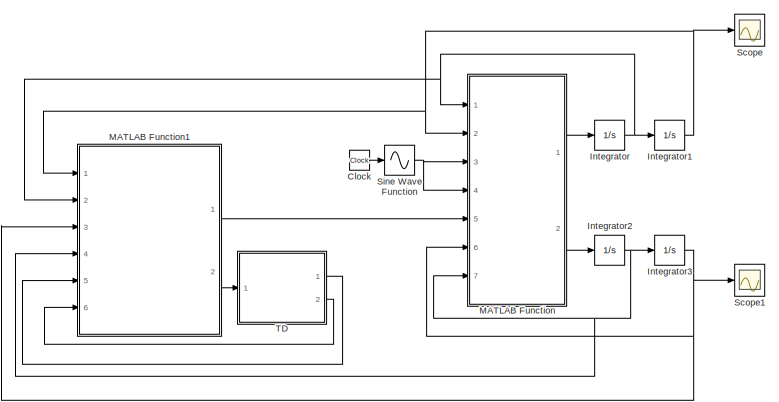
[diagram: root canvas - part 1/2, top center region]
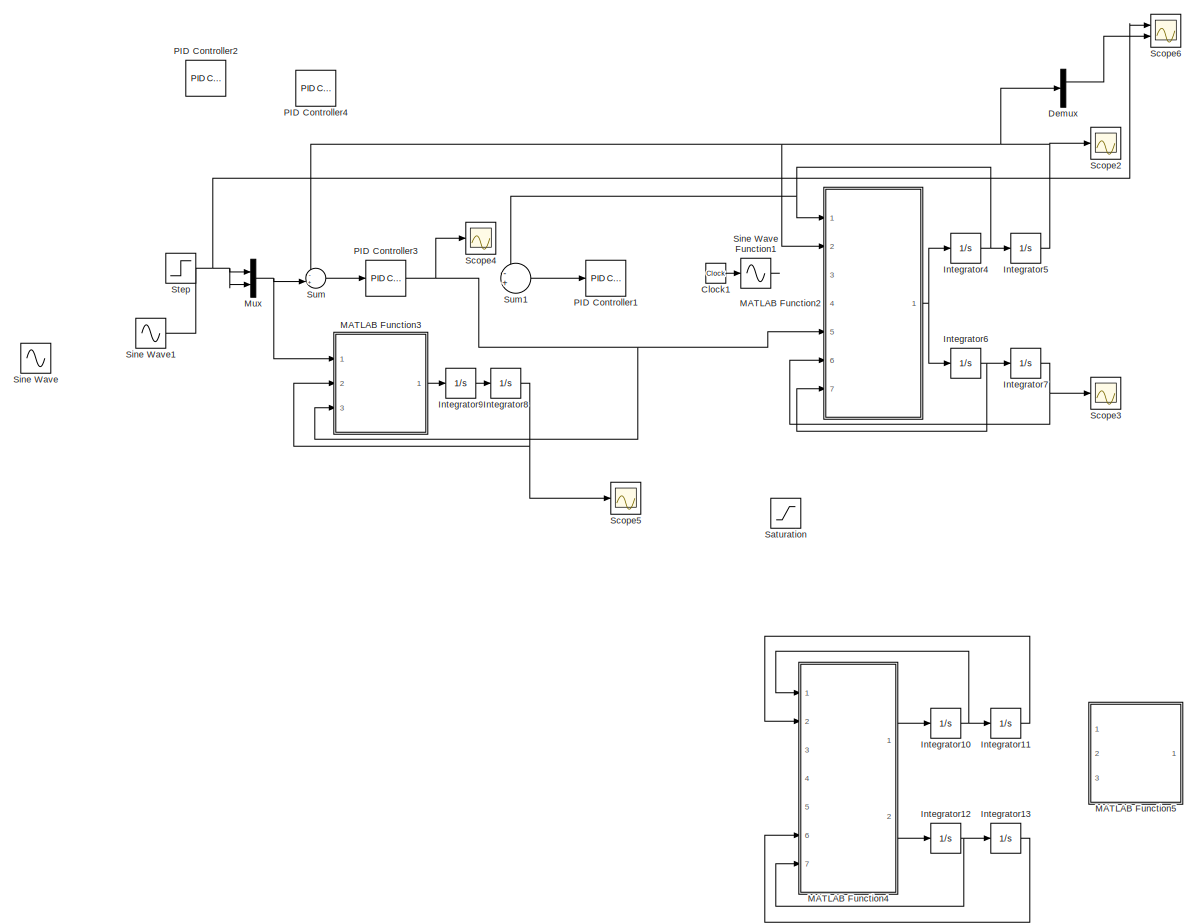
[diagram: root canvas - part 2/2, full width, middle band]
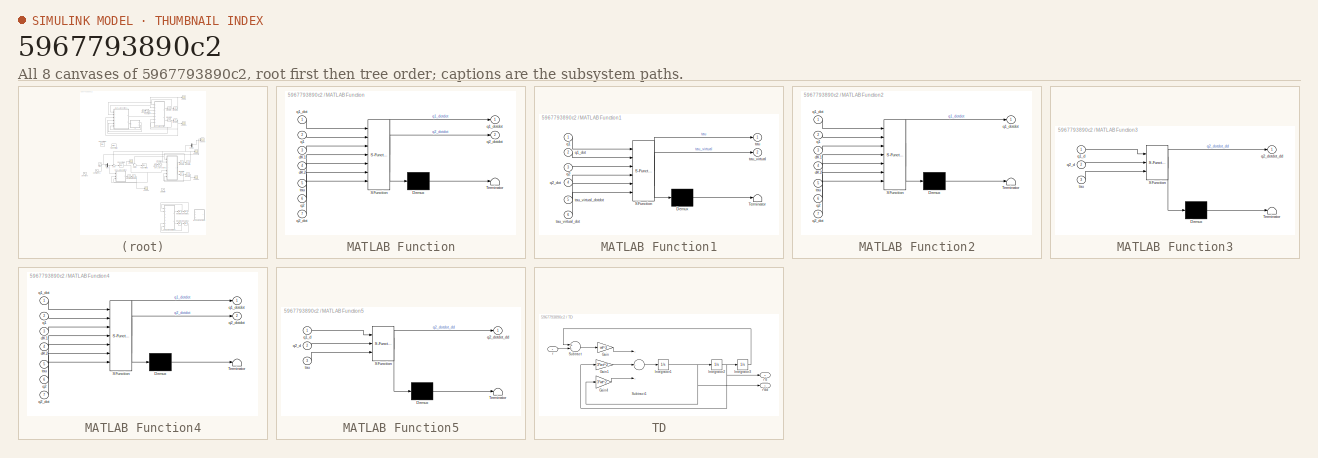
[diagram: thumbnail index - all 8 canvases of the model, root first then tree order]
MODEL slx_5967793890c2
KIND model
CONFIG AbsTol = auto
CONFIG EnableMultiTasking = off
CONFIG FixedStep = 0.001
CONFIG MaxStep = auto
CONFIG MinStep = auto
CONFIG RelTol = 1e-3
CONFIG SampleTimeConstraint = Unconstrained
CONFIG Solver = ode1
CONFIG SolverName = ode1
CONFIG StartTime = 0.0
CONFIG StopTime = 100
BLOCK [Clock] Clock
  Commented = on
BLOCK [Clock] Clock1
BLOCK [Demux] Demux
  DisplayOption = bar
  Outputs = 2
  Ports = [1, 2]
BLOCK [Integrator] Integrator
  Commented = on
  Ports = [1, 1]
BLOCK [Integrator] Integrator1
  Commented = on
  Ports = [1, 1]
BLOCK [Integrator] Integrator10
  Ports = [1, 1]
BLOCK [Integrator] Integrator11
  Ports = [1, 1]
BLOCK [Integrator] Integrator12
  Ports = [1, 1]
BLOCK [Integrator] Integrator13
  Ports = [1, 1]
BLOCK [Integrator] Integrator2
  Commented = on
  Ports = [1, 1]
BLOCK [Integrator] Integrator3
  Commented = on
  Ports = [1, 1]
BLOCK [Integrator] Integrator4
  Ports = [1, 1]
BLOCK [Integrator] Integrator5
  Ports = [1, 1]
BLOCK [Integrator] Integrator6
  Ports = [1, 1]
BLOCK [Integrator] Integrator7
  Ports = [1, 1]
BLOCK [Integrator] Integrator8
  Ports = [1, 1]
BLOCK [Integrator] Integrator9
  Ports = [1, 1]
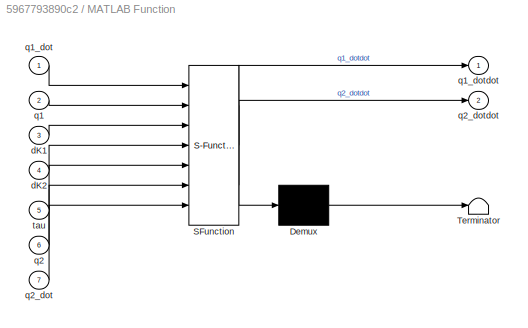
BLOCK [SubSystem] MATLAB Function
  Commented = on
  ErrorFcn = Stateflow.Translate.translate
  PermitHierarchicalResolution = ExplicitOnly
  Ports = [7, 2]
  RequestExecContextInheritance = off
  SFBlockType = MATLAB Function
  TreatAsAtomicUnit = on
BLOCK [Demux] MATLAB Function/ Demux 
  Outputs = 1
  Ports = [1, 1]
BLOCK [S-Function] MATLAB Function/ SFunction 
  EnableBusSupport = on
  FunctionName = sf_sfun
  PortCounts = [7 3]
  Ports = [7, 3]
  SFcnIsStateOwnerBlock = off
  SFunctionDeploymentMode = off
  Tag = Stateflow S-Function Copy_of_motor_new 2
BLOCK [Terminator] MATLAB Function/ Terminator 
BLOCK [Inport] MATLAB Function/dK1
  IconDisplay = Port number
  Port = 3
BLOCK [Inport] MATLAB Function/dK2
  IconDisplay = Port number
  Port = 4
BLOCK [Inport] MATLAB Function/q1
  IconDisplay = Port number
  Port = 2
BLOCK [Inport] MATLAB Function/q1_dot
  IconDisplay = Port number
BLOCK [Outport] MATLAB Function/q1_dotdot
  IconDisplay = Port number
BLOCK [Inport] MATLAB Function/q2
  IconDisplay = Port number
  Port = 6
BLOCK [Inport] MATLAB Function/q2_dot
  IconDisplay = Port number
  Port = 7
BLOCK [Outport] MATLAB Function/q2_dotdot
  IconDisplay = Port number
  Port = 2
BLOCK [Inport] MATLAB Function/tau
  IconDisplay = Port number
  Port = 5
BLOCK [SubSystem] MATLAB Function1
  Commented = on
  ErrorFcn = Stateflow.Translate.translate
  PermitHierarchicalResolution = ExplicitOnly
  Ports = [6, 2]
  RequestExecContextInheritance = off
  SFBlockType = MATLAB Function
  TreatAsAtomicUnit = on
BLOCK [Demux] MATLAB Function1/ Demux 
  Outputs = 1
  Ports = [1, 1]
BLOCK [S-Function] MATLAB Function1/ SFunction 
  EnableBusSupport = on
  FunctionName = sf_sfun
  PortCounts = [6 3]
  Ports = [6, 3]
  SFcnIsStateOwnerBlock = off
  SFunctionDeploymentMode = off
  Tag = Stateflow S-Function Copy_of_motor_new 1
BLOCK [Terminator] MATLAB Function1/ Terminator 
BLOCK [Inport] MATLAB Function1/q1
  IconDisplay = Port number
BLOCK [Inport] MATLAB Function1/q1_dot
  IconDisplay = Port number
  Port = 2
BLOCK [Inport] MATLAB Function1/q2
  IconDisplay = Port number
  Port = 3
BLOCK [Inport] MATLAB Function1/q2_dot
  IconDisplay = Port number
  Port = 4
BLOCK [Outport] MATLAB Function1/tau
  IconDisplay = Port number
BLOCK [Outport] MATLAB Function1/tau_virtual
  IconDisplay = Port number
  Port = 2
BLOCK [Inport] MATLAB Function1/tau_virtual_dot
  IconDisplay = Port number
  Port = 6
BLOCK [Inport] MATLAB Function1/tau_virtual_dotdot
  IconDisplay = Port number
  Port = 5
BLOCK [SubSystem] MATLAB Function2
  ErrorFcn = Stateflow.Translate.translate
  PermitHierarchicalResolution = ExplicitOnly
  Ports = [7, 1]
  RequestExecContextInheritance = off
  SFBlockType = MATLAB Function
  TreatAsAtomicUnit = on
BLOCK [Demux] MATLAB Function2/ Demux 
  Outputs = 1
  Ports = [1, 1]
BLOCK [S-Function] MATLAB Function2/ SFunction 
  EnableBusSupport = on
  FunctionName = sf_sfun
  PortCounts = [7 2]
  Ports = [7, 2]
  SFcnIsStateOwnerBlock = off
  SFunctionDeploymentMode = off
  Tag = Stateflow S-Function Copy_of_motor_new 3
BLOCK [Terminator] MATLAB Function2/ Terminator 
BLOCK [Inport] MATLAB Function2/dK1
  IconDisplay = Port number
  Port = 3
BLOCK [Inport] MATLAB Function2/dK2
  IconDisplay = Port number
  Port = 4
BLOCK [Inport] MATLAB Function2/q1
  IconDisplay = Port number
  Port = 2
BLOCK [Inport] MATLAB Function2/q1_dot
  IconDisplay = Port number
BLOCK [Outport] MATLAB Function2/q1_dotdot
  IconDisplay = Port number
BLOCK [Inport] MATLAB Function2/q2
  IconDisplay = Port number
  Port = 6
BLOCK [Inport] MATLAB Function2/q2_dot
  IconDisplay = Port number
  Port = 7
BLOCK [Inport] MATLAB Function2/tau
  IconDisplay = Port number
  Port = 5
BLOCK [SubSystem] MATLAB Function3
  ErrorFcn = Stateflow.Translate.translate
  PermitHierarchicalResolution = ExplicitOnly
  Ports = [3, 1]
  RequestExecContextInheritance = off
  SFBlockType = MATLAB Function
  TreatAsAtomicUnit = on
BLOCK [Demux] MATLAB Function3/ Demux 
  Outputs = 1
  Ports = [1, 1]
BLOCK [S-Function] MATLAB Function3/ SFunction 
  EnableBusSupport = on
  FunctionName = sf_sfun
  PortCounts = [3 2]
  Ports = [3, 2]
  SFcnIsStateOwnerBlock = off
  SFunctionDeploymentMode = off
  Tag = Stateflow S-Function Copy_of_motor_new 4
BLOCK [Terminator] MATLAB Function3/ Terminator 
BLOCK [Inport] MATLAB Function3/q1_d
  IconDisplay = Port number
BLOCK [Inport] MATLAB Function3/q2_d
  IconDisplay = Port number
  Port = 2
BLOCK [Outport] MATLAB Function3/q2_dotdot_dd
  IconDisplay = Port number
BLOCK [Inport] MATLAB Function3/tau
  IconDisplay = Port number
  Port = 3
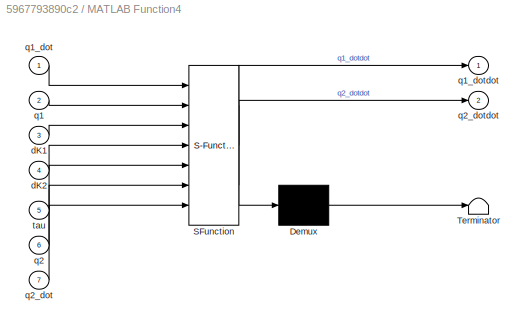
BLOCK [SubSystem] MATLAB Function4
  ErrorFcn = Stateflow.Translate.translate
  PermitHierarchicalResolution = ExplicitOnly
  Ports = [7, 2]
  RequestExecContextInheritance = off
  SFBlockType = MATLAB Function
  TreatAsAtomicUnit = on
BLOCK [Demux] MATLAB Function4/ Demux 
  Outputs = 1
  Ports = [1, 1]
BLOCK [S-Function] MATLAB Function4/ SFunction 
  EnableBusSupport = on
  FunctionName = sf_sfun
  PortCounts = [7 3]
  Ports = [7, 3]
  SFcnIsStateOwnerBlock = off
  SFunctionDeploymentMode = off
  Tag = Stateflow S-Function Copy_of_motor_new 5
BLOCK [Terminator] MATLAB Function4/ Terminator 
BLOCK [Inport] MATLAB Function4/dK1
  IconDisplay = Port number
  Port = 3
BLOCK [Inport] MATLAB Function4/dK2
  IconDisplay = Port number
  Port = 4
BLOCK [Inport] MATLAB Function4/q1
  IconDisplay = Port number
  Port = 2
BLOCK [Inport] MATLAB Function4/q1_dot
  IconDisplay = Port number
BLOCK [Outport] MATLAB Function4/q1_dotdot
  IconDisplay = Port number
BLOCK [Inport] MATLAB Function4/q2
  IconDisplay = Port number
  Port = 6
BLOCK [Inport] MATLAB Function4/q2_dot
  IconDisplay = Port number
  Port = 7
BLOCK [Outport] MATLAB Function4/q2_dotdot
  IconDisplay = Port number
  Port = 2
BLOCK [Inport] MATLAB Function4/tau
  IconDisplay = Port number
  Port = 5
BLOCK [SubSystem] MATLAB Function5
  ErrorFcn = Stateflow.Translate.translate
  PermitHierarchicalResolution = ExplicitOnly
  Ports = [3, 1]
  RequestExecContextInheritance = off
  SFBlockType = MATLAB Function
  TreatAsAtomicUnit = on
BLOCK [Demux] MATLAB Function5/ Demux 
  Outputs = 1
  Ports = [1, 1]
BLOCK [S-Function] MATLAB Function5/ SFunction 
  EnableBusSupport = on
  FunctionName = sf_sfun
  PortCounts = [3 2]
  Ports = [3, 2]
  SFcnIsStateOwnerBlock = off
  SFunctionDeploymentMode = off
  Tag = Stateflow S-Function Copy_of_motor_new 6
BLOCK [Terminator] MATLAB Function5/ Terminator 
BLOCK [Inport] MATLAB Function5/q1_d
  IconDisplay = Port number
BLOCK [Inport] MATLAB Function5/q2_d
  IconDisplay = Port number
  Port = 2
BLOCK [Outport] MATLAB Function5/q2_dotdot_dd
  IconDisplay = Port number
BLOCK [Inport] MATLAB Function5/tau
  IconDisplay = Port number
  Port = 3
BLOCK [Mux] Mux
  DisplayOption = bar
  Inputs = 2
  Ports = [2, 1]
BLOCK [Reference] PID Controller1  REF=simulink/Continuous/PID Controller
  Ports = [1, 1]
  SourceBlock = simulink/Continuous/PID Controller
  SourceProductBaseCode = SL
  SourceProductName = Simulink
  SourceType = PID 1dof
BLOCK [Reference] PID Controller2  REF=simulink/Continuous/PID Controller
  Ports = [1, 1]
  SourceBlock = simulink/Continuous/PID Controller
  SourceProductBaseCode = SL
  SourceProductName = Simulink
  SourceType = PID 1dof
BLOCK [Reference] PID Controller3  REF=simulink/Continuous/PID Controller
  Ports = [1, 1]
  SourceBlock = simulink/Continuous/PID Controller
  SourceProductBaseCode = SL
  SourceProductName = Simulink
  SourceType = PID 1dof
BLOCK [Reference] PID Controller4  REF=simulink/Continuous/PID Controller
  Ports = [1, 1]
  SourceBlock = simulink/Continuous/PID Controller
  SourceProductBaseCode = SL
  SourceProductName = Simulink
  SourceType = PID 1dof
BLOCK [Saturate] Saturation
  InputPortMap = u0
  LowerLimit = [-4000;-4000]
  Ports = [1, 1]
  UpperLimit = [4000;4000]
BLOCK [Scope] Scope
  Commented = on
  Floating = off
  NumInputPorts = 1
  Ports = [1]
  ScopeSpecificationString = Simulink.scopes.TimeScopeBlockCfg('CurrentConfiguration', extmgr.ConfigurationSet(extmgr.Configuration('Core','General UI',true),extmgr.Configuration('Core','Source UI',true),extmgr.Configuration('Sources','WiredSimulink',true),extmgr.Configuration('Visuals','Time Domain',true,'SerializedDisplays',{struct('MinYLimReal','-1.00000','MaxYLimReal','1.00000','YLabelReal','','MinYLimMag','0.00000','MaxY...<+1401ch>
BLOCK [Scope] Scope1
  Commented = on
  Floating = off
  NumInputPorts = 1
  Ports = [1]
  ScopeSpecificationString = Simulink.scopes.TimeScopeBlockCfg('CurrentConfiguration', extmgr.ConfigurationSet(extmgr.Configuration('Core','General UI',true),extmgr.Configuration('Core','Source UI',true),extmgr.Configuration('Sources','WiredSimulink',true,'DataLoggingVariableName','ScopeData1'),extmgr.Configuration('Visuals','Time Domain',true,'SerializedDisplays',{struct('MinYLimReal','-1.00000','MaxYLimReal','1.00000','YLab...<+1413ch>
BLOCK [Scope] Scope2
  Floating = off
  NumInputPorts = 1
  Ports = [1]
  ScopeSpecificationString = Simulink.scopes.TimeScopeBlockCfg('CurrentConfiguration', extmgr.ConfigurationSet(extmgr.Configuration('Core','General UI',true),extmgr.Configuration('Core','Source UI',true),extmgr.Configuration('Sources','WiredSimulink',true,'DataLoggingVariableName','ScopeData1'),extmgr.Configuration('Visuals','Time Domain',true,'SerializedDisplays',{struct('MinYLimReal','-1.15371','MaxYLimReal','1.18511','YLab...<+1459ch>
BLOCK [Scope] Scope3
  Floating = off
  NumInputPorts = 1
  Ports = [1]
  ScopeSpecificationString = Simulink.scopes.TimeScopeBlockCfg('CurrentConfiguration', extmgr.ConfigurationSet(extmgr.Configuration('Core','General UI',true),extmgr.Configuration('Core','Source UI',true),extmgr.Configuration('Sources','WiredSimulink',true,'DataLoggingVariableName','ScopeData2'),extmgr.Configuration('Visuals','Time Domain',true,'SerializedDisplays',{struct('MinYLimReal','-23302793395502786675736576.00000','Max...<+1655ch>
BLOCK [Scope] Scope4
  Floating = off
  NumInputPorts = 1
  Ports = [1]
  ScopeSpecificationString = Simulink.scopes.TimeScopeBlockCfg('CurrentConfiguration', extmgr.ConfigurationSet(extmgr.Configuration('Core','General UI',true),extmgr.Configuration('Core','Source UI',true),extmgr.Configuration('Sources','WiredSimulink',true,'DataLoggingVariableName','ScopeData3'),extmgr.Configuration('Visuals','Time Domain',true,'SerializedDisplays',{struct('MinYLimReal','-10.00645','MaxYLimReal','34.44516','YL...<+1500ch>
BLOCK [Scope] Scope5
  Floating = off
  NumInputPorts = 1
  Ports = [1]
  ScopeSpecificationString = Simulink.scopes.TimeScopeBlockCfg('CurrentConfiguration', extmgr.ConfigurationSet(extmgr.Configuration('Core','General UI',true),extmgr.Configuration('Core','Source UI',true),extmgr.Configuration('Sources','WiredSimulink',true,'DataLoggingVariableName','ScopeData4'),extmgr.Configuration('Visuals','Time Domain',true,'SerializedDisplays',{struct('MinYLimReal','-0.03084','MaxYLimReal','0.27753','YLab...<+1485ch>
BLOCK [Scope] Scope6
  Floating = off
  NumInputPorts = 2
  Ports = [2]
  ScopeSpecificationString = Simulink.scopes.TimeScopeBlockCfg('CurrentConfiguration', extmgr.ConfigurationSet(extmgr.Configuration('Core','General UI',true),extmgr.Configuration('Core','Source UI',true),extmgr.Configuration('Sources','WiredSimulink',true,'DataLoggingVariableName','ScopeData1'),extmgr.Configuration('Visuals','Time Domain',true,'SerializedDisplays',{struct('MinYLimReal','-1.15371','MaxYLimReal','1.18511','YLab...<+1450ch>
BLOCK [Sin] Sine Wave
  Commented = on
  Ports = [0, 1]
  SampleTime = 0
BLOCK [Sin] Sine Wave Function
  Amplitude = 0.4
  Commented = on
  Frequency = 20
  Ports = [1, 1]
  SampleTime = 0
  TimeSource = Use external signal
BLOCK [Sin] Sine Wave Function1
  Amplitude = 0.4
  Frequency = 20
  Ports = [1, 1]
  SampleTime = 0
  TimeSource = Use external signal
BLOCK [Sin] Sine Wave1
  Ports = [0, 1]
  SampleTime = 0
BLOCK [Step] Step
  After = 0.1
  SampleTime = 0
  Time = 0
BLOCK [Sum] Sum
  IconShape = round
  InputSameDT = off
  Inputs = -+|
  OutDataTypeStr = Inherit: Inherit via internal rule
  Ports = [2, 1]
  SaturateOnIntegerOverflow = off
BLOCK [Sum] Sum1
  IconShape = round
  InputSameDT = off
  Inputs = -+|
  OutDataTypeStr = Inherit: Inherit via internal rule
  Ports = [2, 1]
  SaturateOnIntegerOverflow = off
BLOCK [SubSystem] TD
  Commented = on
  Ports = [1, 2]
  RequestExecContextInheritance = off
BLOCK [Gain] TD/Gain
  Gain = wt^3
  OutDataTypeStr = Inherit: Inherit via internal rule
  ParamDataTypeStr = Inherit: Inherit via internal rule
  SaturateOnIntegerOverflow = off
BLOCK [Gain] TD/Gain1
  Gain = 3*wt^2
  OutDataTypeStr = Inherit: Inherit via internal rule
  ParamDataTypeStr = Inherit: Inherit via internal rule
  SaturateOnIntegerOverflow = off
BLOCK [Gain] TD/Gain4
  Gain = 3*wt^2
  OutDataTypeStr = Inherit: Inherit via internal rule
  ParamDataTypeStr = Inherit: Inherit via internal rule
  SaturateOnIntegerOverflow = off
BLOCK [Integrator] TD/Integrator1
  Ports = [1, 1]
BLOCK [Integrator] TD/Integrator2
  Ports = [1, 1]
BLOCK [Integrator] TD/Integrator3
  Ports = [1, 1]
BLOCK [Sum] TD/Subtract
  InputSameDT = off
  Inputs = +-
  OutDataTypeStr = Inherit: Inherit via internal rule
  Ports = [2, 1]
  SaturateOnIntegerOverflow = off
BLOCK [Sum] TD/Subtract1
  InputSameDT = off
  Inputs = ---
  OutDataTypeStr = Inherit: Inherit via internal rule
  Ports = [3, 1]
  SaturateOnIntegerOverflow = off
BLOCK [Inport] TD/r
  IconDisplay = Port number
BLOCK [Outport] TD/r*d
  IconDisplay = Port number
  Port = 2
BLOCK [Outport] TD/r*dd
  IconDisplay = Port number
LINE Clock1:1 -> Sine Wave Function1:1
LINE Clock:1 -> Sine Wave Function:1
LINE Demux:1 -> Scope6:2
NET Integrator10:1 -> Integrator11:1, MATLAB Function4:1
LINE Integrator11:1 -> MATLAB Function4:2
NET Integrator12:1 -> Integrator13:1, MATLAB Function4:7
LINE Integrator13:1 -> MATLAB Function4:6
NET Integrator1:1 -> MATLAB Function1:1, MATLAB Function:2, Scope:1
NET Integrator2:1 -> Integrator3:1, MATLAB Function1:4, MATLAB Function:7
NET Integrator3:1 -> MATLAB Function1:3, MATLAB Function:6, Scope1:1
NET Integrator4:1 -> Integrator5:1, MATLAB Function2:1, Sum1:1
NET Integrator5:1 -> Demux:1, MATLAB Function2:2, Scope2:1, Sum:1
NET Integrator6:1 -> Integrator7:1, MATLAB Function2:7
NET Integrator7:1 -> MATLAB Function2:6, Scope3:1
NET Integrator8:1 -> MATLAB Function3:2, Scope5:1
LINE Integrator9:1 -> Integrator8:1
NET Integrator:1 -> Integrator1:1, MATLAB Function1:2, MATLAB Function:1
LINE MATLAB Function1:1 -> MATLAB Function:5
LINE MATLAB Function1:2 -> TD:1
NET MATLAB Function2:1 -> Integrator4:1, Integrator6:1
LINE MATLAB Function3:1 -> Integrator9:1
LINE MATLAB Function4:1 -> Integrator10:1
LINE MATLAB Function4:2 -> Integrator12:1
LINE MATLAB Function:1 -> Integrator:1
LINE MATLAB Function:2 -> Integrator2:1
NET Mux:1 -> MATLAB Function3:1, Sum:2
NET PID Controller3:1 -> MATLAB Function2:5, MATLAB Function3:3, Scope4:1
NET Sine Wave Function:1 -> MATLAB Function:3, MATLAB Function:4
NET Sine Wave1:1 -> Mux:1, Mux:2, Scope6:1
LINE Sum1:1 -> PID Controller1:1
LINE Sum:1 -> PID Controller3:1
LINE TD/Gain1:1 -> TD/Subtract1:2
LINE TD/Gain4:1 -> TD/Subtract1:3
LINE TD/Gain:1 -> TD/Subtract1:1
NET TD/Integrator1:1 -> TD/Gain4:1, TD/Integrator2:1, TD/r*dd:1
NET TD/Integrator2:1 -> TD/Gain1:1, TD/Integrator3:1, TD/r*d:1
LINE TD/Integrator3:1 -> TD/Subtract:1
LINE TD/Subtract1:1 -> TD/Integrator1:1
LINE TD/Subtract:1 -> TD/Gain:1
LINE TD/r:1 -> TD/Subtract:2
LINE TD:1 -> MATLAB Function1:5
LINE TD:2 -> MATLAB Function1:6
note: NET lines group one-source signal fan-out (src -> all destinations, sorted); 1:1 wires keep LINE
CHART MATLAB Function1 states=1 transitions=1
  STATE_LABEL 'eML_blk_kernel()'
  STATE_LABEL 'SCRIPT:\nfunction [tau,tau_virtual] = fcn(q1,q1_dot,q2,q2_dot,tau_virtual_dotdot,tau_virtual_dot)\n\nJ11 = 3.17*10^(-4);\nJ22 = 0.97*10^(-4);\nI1 = 0.96;\nI2 = 0.71;\nl1 = 0.6;\nlc1 = 0.3;\nlc2 = 0.5;\nm1 = 19.31;\nm2 = 13.73;\nK1_ = 1.06*10^3;\nK2_ = 0.75*10^3;\ng = 9.8;\n\nS11 = 1;\nS12 = 1;\nS21 = 2;\nS22 = 2;\nw1 =1;\nbeta1 = 2; beta2 = 2;\nalpha1 = 10; alpha2 = 10;\nKp1 = 100; Kd1 =20;\n\ndK1=0;dK2=0;\n\nq11 = q1(1);\nq...<+1297ch>'
CHART MATLAB Function states=1 transitions=1
  STATE_LABEL 'eML_blk_kernel()'
  STATE_LABEL 'SCRIPT:\nfunction [q1_dotdot,q2_dotdot] = fcn(q1_dot,q1,dK1,dK2,tau,q2,q2_dot)\nJ11 = 3.17*10^(-4);\nJ22 = 0.97*10^(-4);\nI1 = 0.96;\nI2 = 0.71;\nl1 = 0.6;\nlc1 = 0.3;\nlc2 = 0.5;\nm1 = 19.31;\nm2 = 13.73;\nK1_ = 1.06*10^3;\nK2_ = 0.75*10^3;\ng = 9.8;\n\nS11 = 1;\nS12 = 1;\nS21 = 2;\nS22 = 2;\nw1 =1;\nbeta1 = 2; beta2 = 2;\nalpha1 = 10; alpha2 = 10;\nKp1 = 100; Kd1 =20;\n\n\nq11 = q1(1);\nq12 = q1(2);\nq11_dot = q1_dot(1);\n...<+699ch>'
CHART MATLAB Function2 states=1 transitions=1
  STATE_LABEL 'eML_blk_kernel()'
  STATE_LABEL 'SCRIPT:\nfunction q1_dotdot   = fcn(q1_dot,q1,dK1,dK2, tau,q2,q2_dot)\nJ11 = 3.17*10^(-4);\nJ22 = 0.97*10^(-4);\nI1 = 0.96;\nI2 = 0.71;\nl1 = 0.6;\nlc1 = 0.3;\nlc2 = 0.5;\nm1 = 19.31;\nm2 = 13.73;\nK1_ = 1.06*10^3;\nK2_ = 0.75*10^3;\ng = 9.8;\n\nS11 = 1;\nS12 = 1;\nS21 = 2;\nS22 = 2;\nw1 =1;\nbeta1 = 2; beta2 = 2;\nalpha1 = 10; alpha2 = 10;\nKp1 = 100; Kd1 =20;\n\n\nq11 = q1(1);\nq12 = q1(2);\nq11_dot = q1_dot(1);\nq12_dot =...<+736ch>'
CHART MATLAB Function3 states=1 transitions=1
  STATE_LABEL 'eML_blk_kernel()'
  STATE_LABEL "SCRIPT:\nfunction q2_dotdot_dd = fcn(q1_d,q2_d,tau)\nJ11 = 3.17*10^(-4);\nJ22 = 0.97*10^(-4);\nJ = diag([J11,J22]);\n\nK1_ = 1.06*10^3;\nK2_ = 0.75*10^3;\n\nK_ = diag([K1_,K2_]);\n\n\nq2_dotdot_dd = J'*(tau + K_*(q1_d - q2_d));\n"
CHART MATLAB Function4 states=1 transitions=1
  STATE_LABEL 'eML_blk_kernel()'
  STATE_LABEL 'SCRIPT:\nfunction [q1_dotdot,q2_dotdot]  = fcn(q1_dot,q1,dK1,dK2,tau,q2,q2_dot)\nJ11 = 3.17*10^(-4);\nJ22 = 0.97*10^(-4);\nI1 = 0.96;\nI2 = 0.71;\nl1 = 0.6;\nlc1 = 0.3;\nlc2 = 0.5;\nm1 = 19.31;\nm2 = 13.73;\nK1_ = 1.06*10^3;\nK2_ = 0.75*10^3;\ng = 9.8;\n\nS11 = 1;\nS12 = 1;\nS21 = 2;\nS22 = 2;\nw1 =1;\nbeta1 = 2; beta2 = 2;\nalpha1 = 10; alpha2 = 10;\nKp1 = 100; Kd1 =20;\n\n\nq11 = q1(1);\nq12 = q1(2);\nq11_dot = q1_dot(1);...<+744ch>'
CHART MATLAB Function5 states=1 transitions=1
  STATE_LABEL 'eML_blk_kernel()'
  STATE_LABEL "SCRIPT:\nfunction q2_dotdot_dd = fcn(q1_d,q2_d,tau)\nJ11 = 3.17*10^(-4);\nJ22 = 0.97*10^(-4);\nJ = diag([J11,J22]);\n\nK1_ = 1.06*10^3;\nK2_ = 0.75*10^3;\n\nK_ = diag([K1_,K2_]);\n\n\nq2_dotdot_dd = J'*(tau + K_*(q1_d - q2_d));\n"
